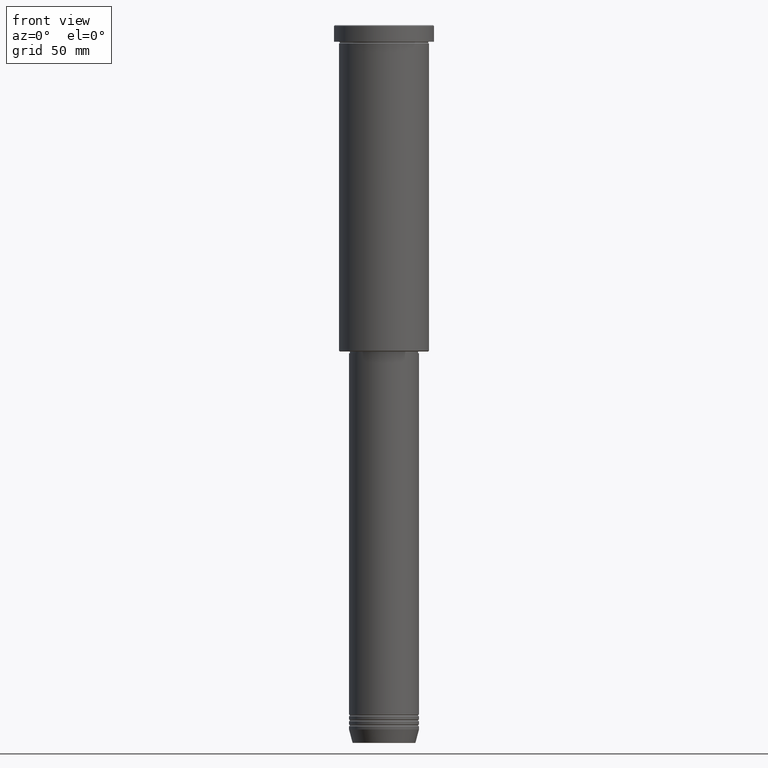
[diagram: clean part render]
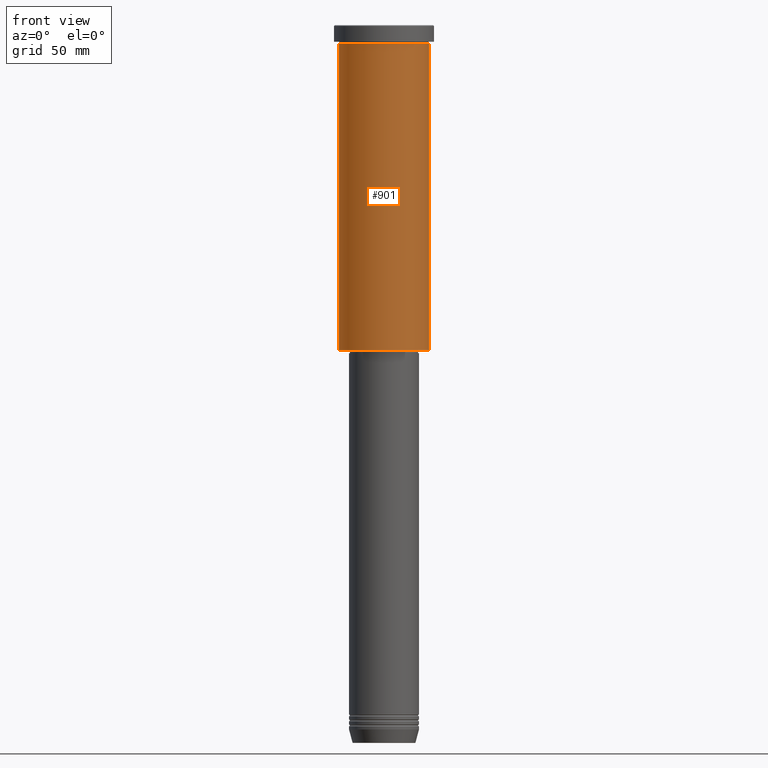
[diagram: same view with one face highlighted and labeled with its STEP entity id]
A machine part, front view. The second image highlights one B-rep face of the part: STEP entity #901.
In plain terms, the highlighted cylindrical surface (partial cylindrical patch) has radius 27 mm, axis along (-0, -0, 1).
Its self-contained STEP definition (entity closure, byte-faithful):
#40 = AXIS2_PLACEMENT_3D ( 'NONE', #950, #308, #675 ) ;
#79 = CARTESIAN_POINT ( 'NONE',  ( -27.00000000000000355, 3.306546357697854128E-15, -10.99999999999999289 ) ) ;
#86 = DIRECTION ( 'NONE',  ( 1.000000000000000000, 0.000000000000000000, 0.000000000000000000 ) ) ;
#110 = LINE ( 'NONE', #484, #174 ) ;
#135 = VERTEX_POINT ( 'NONE', #936 ) ;
#147 = EDGE_CURVE ( 'NONE', #135, #1182, #630, .T. ) ;
#153 = AXIS2_PLACEMENT_3D ( 'NONE', #583, #494, #850 ) ;
#160 = CIRCLE ( 'NONE', #40, 27.00000000000000355 ) ;
#174 = VECTOR ( 'NONE', #1177, 1000.000000000000000 ) ;
#227 = ORIENTED_EDGE ( 'NONE', *, *, #147, .T. ) ;
#259 = VERTEX_POINT ( 'NONE', #342 ) ;
#266 = DIRECTION ( 'NONE',  ( -0.000000000000000000, -0.000000000000000000, 1.000000000000000000 ) ) ;
#278 = VECTOR ( 'NONE', #809, 1000.000000000000000 ) ;
#308 = DIRECTION ( 'NONE',  ( -0.000000000000000000, -0.000000000000000000, 1.000000000000000000 ) ) ;
#342 = CARTESIAN_POINT ( 'NONE',  ( 27.00000000000000355, 0.000000000000000000, -10.99999999999999289 ) ) ;
#361 = CARTESIAN_POINT ( 'NONE',  ( 0.000000000000000000, 0.000000000000000000, 0.000000000000000000 ) ) ;
#453 = LINE ( 'NONE', #1175, #278 ) ;
#484 = CARTESIAN_POINT ( 'NONE',  ( 27.00000000000000355, 0.000000000000000000, 0.000000000000000000 ) ) ;
#494 = DIRECTION ( 'NONE',  ( -0.000000000000000000, -0.000000000000000000, 1.000000000000000000 ) ) ;
#538 = EDGE_LOOP ( 'NONE', ( #546, #227, #908, #942 ) ) ;
#543 = CYLINDRICAL_SURFACE ( 'NONE', #748, 27.00000000000000355 ) ;
#546 = ORIENTED_EDGE ( 'NONE', *, *, #689, .F. ) ;
#583 = CARTESIAN_POINT ( 'NONE',  ( 0.000000000000000000, 0.000000000000000000, -195.4999999999999716 ) ) ;
#630 = CIRCLE ( 'NONE', #153, 27.00000000000000355 ) ;
#675 = DIRECTION ( 'NONE',  ( 1.000000000000000000, 0.000000000000000000, 0.000000000000000000 ) ) ;
#689 = EDGE_CURVE ( 'NONE', #135, #881, #453, .T. ) ;
#748 = AXIS2_PLACEMENT_3D ( 'NONE', #361, #266, #86 ) ;
#809 = DIRECTION ( 'NONE',  ( -0.000000000000000000, -0.000000000000000000, 1.000000000000000000 ) ) ;
#850 = DIRECTION ( 'NONE',  ( -1.000000000000000000, 0.000000000000000000, 0.000000000000000000 ) ) ;
#881 = VERTEX_POINT ( 'NONE', #79 ) ;
#901 = ADVANCED_FACE ( 'NONE', ( #1078 ), #543, .T. ) ;
#908 = ORIENTED_EDGE ( 'NONE', *, *, #1065, .T. ) ;
#936 = CARTESIAN_POINT ( 'NONE',  ( -27.00000000000000355, 3.306546357697854128E-15, -195.4999999999999716 ) ) ;
#942 = ORIENTED_EDGE ( 'NONE', *, *, #1155, .F. ) ;
#950 = CARTESIAN_POINT ( 'NONE',  ( 0.000000000000000000, 0.000000000000000000, -10.99999999999999289 ) ) ;
#1065 = EDGE_CURVE ( 'NONE', #1182, #259, #110, .T. ) ;
#1078 = FACE_OUTER_BOUND ( 'NONE', #538, .T. ) ;
#1130 = CARTESIAN_POINT ( 'NONE',  ( 27.00000000000000355, 0.000000000000000000, -195.4999999999999716 ) ) ;
#1155 = EDGE_CURVE ( 'NONE', #881, #259, #160, .T. ) ;
#1175 = CARTESIAN_POINT ( 'NONE',  ( -27.00000000000000355, 3.306546357697854128E-15, 0.000000000000000000 ) ) ;
#1177 = DIRECTION ( 'NONE',  ( -0.000000000000000000, -0.000000000000000000, 1.000000000000000000 ) ) ;
#1182 = VERTEX_POINT ( 'NONE', #1130 ) ;